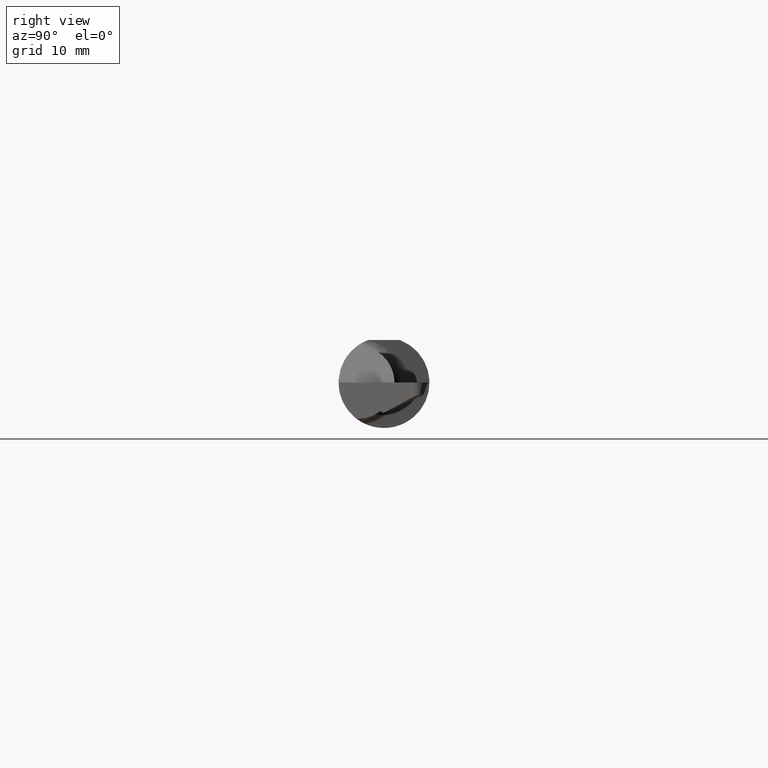
[diagram: clean part render]
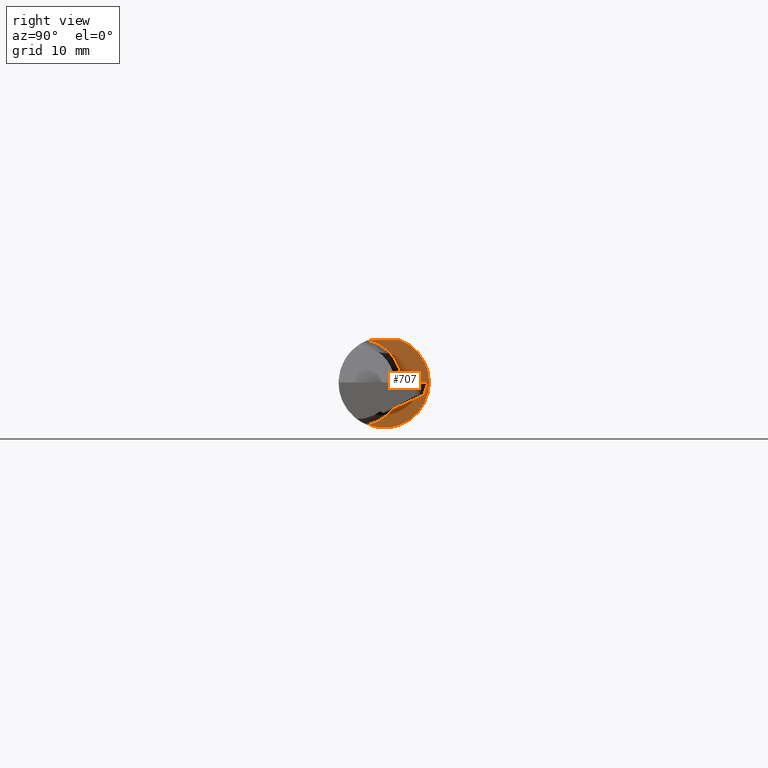
[diagram: same view with one face highlighted and labeled with its STEP entity id]
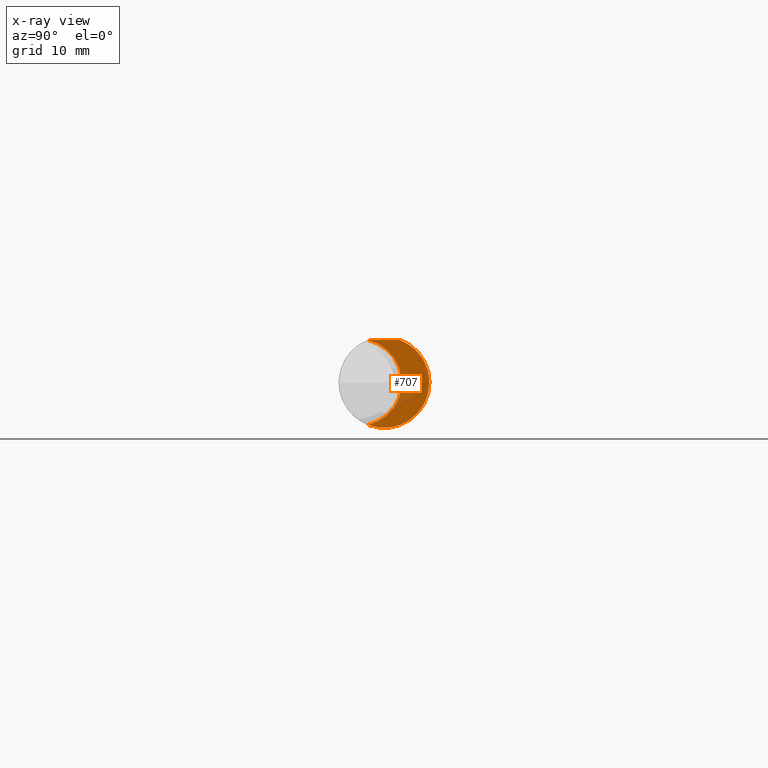
[diagram: x-ray of the same camera — body ghosted, the highlighted face saturated]
A machine part, right view. The second image highlights one B-rep face of the part: STEP entity #707.
The next image is the same camera in x-ray: the body ghosted, the highlighted face saturated — about 19% of this face is hidden behind the body in this view.
In plain terms, the highlighted planar face has unit normal (1, 0, 0).
Its self-contained STEP definition (entity closure, byte-faithful):
#5 = VERTEX_POINT ( 'NONE', #379 ) ;
#64 = AXIS2_PLACEMENT_3D ( 'NONE', #338, #180, #166 ) ;
#79 = ORIENTED_EDGE ( 'NONE', *, *, #573, .T. ) ;
#136 = VERTEX_POINT ( 'NONE', #435 ) ;
#137 = DIRECTION ( 'NONE',  ( -7.764387408964029902E-17, 1.000000000000000000, 0.000000000000000000 ) ) ;
#163 = VECTOR ( 'NONE', #427, 39.37007874015748143 ) ;
#166 = DIRECTION ( 'NONE',  ( 0.000000000000000000, -1.000000000000000000, 0.000000000000000000 ) ) ;
#174 = CARTESIAN_POINT ( 'NONE',  ( 1.426999999999999824, 0.000000000000000000, 0.000000000000000000 ) ) ;
#175 = EDGE_CURVE ( 'NONE', #136, #5, #626, .T. ) ;
#176 = ORIENTED_EDGE ( 'NONE', *, *, #175, .T. ) ;
#180 = DIRECTION ( 'NONE',  ( -1.000000000000000000, -7.764387408964029902E-17, -0.000000000000000000 ) ) ;
#184 = VERTEX_POINT ( 'NONE', #222 ) ;
#191 = PLANE ( 'NONE',  #537 ) ;
#197 = ORIENTED_EDGE ( 'NONE', *, *, #225, .T. ) ;
#222 = CARTESIAN_POINT ( 'NONE',  ( 1.426999999999999824, -0.05497272050753915923, 0.1460999999999999799 ) ) ;
#225 = EDGE_CURVE ( 'NONE', #5, #409, #429, .T. ) ;
#246 = CIRCLE ( 'NONE', #487, 0.1560999999999999888 ) ;
#248 = CARTESIAN_POINT ( 'NONE',  ( 1.426999999999999824, 0.1000000000000001166, 0.1460999999999999799 ) ) ;
#279 = DIRECTION ( 'NONE',  ( 0.000000000000000000, 1.000000000000000000, 0.000000000000000000 ) ) ;
#336 = AXIS2_PLACEMENT_3D ( 'NONE', #174, #741, #279 ) ;
#338 = CARTESIAN_POINT ( 'NONE',  ( 1.426999999999999824, -0.08910000000000006803, 0.000000000000000000 ) ) ;
#344 = CARTESIAN_POINT ( 'NONE',  ( 1.426999999999999824, 0.000000000000000000, 0.000000000000000000 ) ) ;
#368 = EDGE_CURVE ( 'NONE', #409, #184, #411, .T. ) ;
#379 = CARTESIAN_POINT ( 'NONE',  ( 1.426999999999999824, -0.05502817059483734730, -0.1460791239054556601 ) ) ;
#381 = CARTESIAN_POINT ( 'NONE',  ( 1.426999999999999824, 0.05497272050753900657, 0.1460999999999999799 ) ) ;
#396 = EDGE_LOOP ( 'NONE', ( #197, #461, #79, #176 ) ) ;
#407 = DIRECTION ( 'NONE',  ( 0.000000000000000000, 1.000000000000000000, 0.000000000000000000 ) ) ;
#409 = VERTEX_POINT ( 'NONE', #381 ) ;
#411 = LINE ( 'NONE', #248, #163 ) ;
#422 = CARTESIAN_POINT ( 'NONE',  ( 1.426999999999999824, 0.06089999999999986396, 0.000000000000000000 ) ) ;
#427 = DIRECTION ( 'NONE',  ( 7.764387408964029902E-17, -1.000000000000000000, 0.000000000000000000 ) ) ;
#429 = CIRCLE ( 'NONE', #336, 0.1560999999999999888 ) ;
#435 = CARTESIAN_POINT ( 'NONE',  ( 1.426999999999999824, -0.05502817059483734730, 0.1460791239054556601 ) ) ;
#461 = ORIENTED_EDGE ( 'NONE', *, *, #368, .T. ) ;
#487 = AXIS2_PLACEMENT_3D ( 'NONE', #344, #743, #407 ) ;
#537 = AXIS2_PLACEMENT_3D ( 'NONE', #422, #644, #137 ) ;
#573 = EDGE_CURVE ( 'NONE', #184, #136, #246, .T. ) ;
#588 = FACE_OUTER_BOUND ( 'NONE', #396, .T. ) ;
#626 = CIRCLE ( 'NONE', #64, 0.1499999999999999112 ) ;
#644 = DIRECTION ( 'NONE',  ( 1.000000000000000000, 7.764387408964029902E-17, 0.000000000000000000 ) ) ;
#707 = ADVANCED_FACE ( 'NONE', ( #588 ), #191, .T. ) ;
#741 = DIRECTION ( 'NONE',  ( 1.000000000000000000, 7.764387408964029902E-17, 0.000000000000000000 ) ) ;
#743 = DIRECTION ( 'NONE',  ( 1.000000000000000000, 7.764387408964029902E-17, 0.000000000000000000 ) ) ;